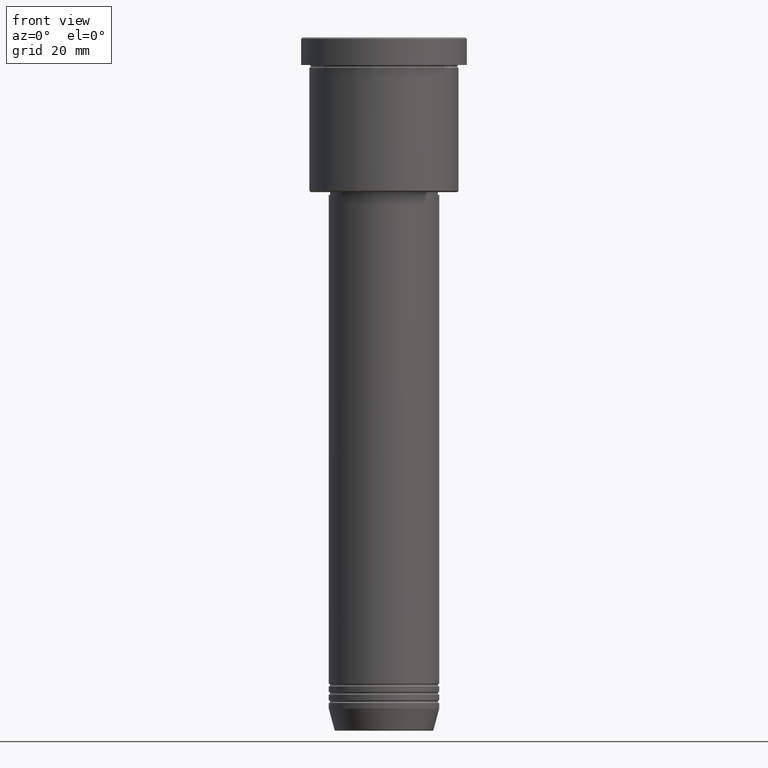
[diagram: clean part render]
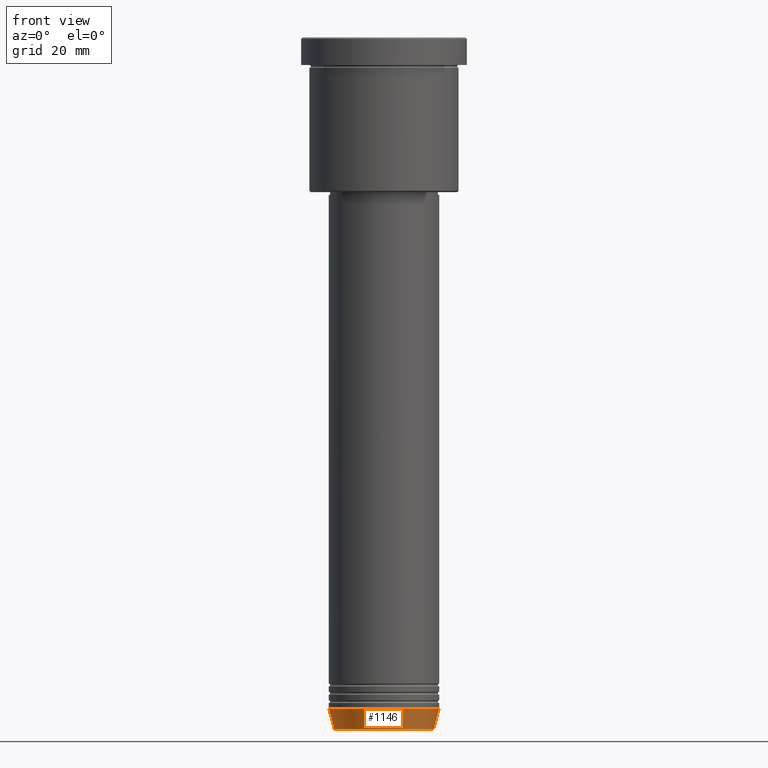
[diagram: same view with one face highlighted and labeled with its STEP entity id]
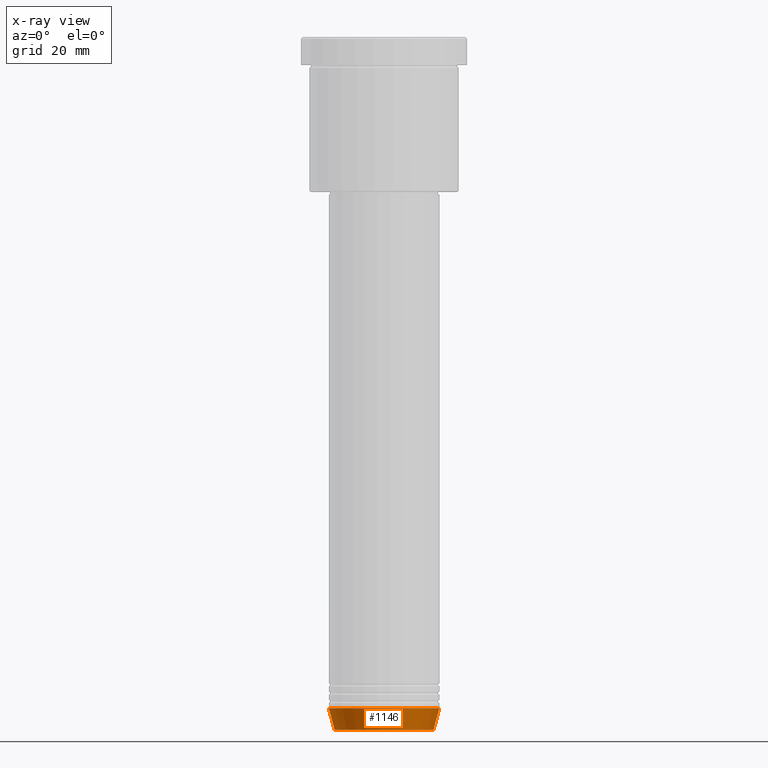
[diagram: x-ray of the same camera — body ghosted, the highlighted face saturated]
A machine part, front view. The second image highlights one B-rep face of the part: STEP entity #1146.
The next image is the same camera in x-ray: the body ghosted, the highlighted face saturated — about 0% of this face is hidden behind the body in this view.
In plain terms, the highlighted conical surface has half-angle 15 deg.
Its self-contained STEP definition (entity closure, byte-faithful):
#77 = CONICAL_SURFACE ( 'NONE', #834, 20.00000000000000000, 0.2617993877991500740 ) ;
#127 = VERTEX_POINT ( 'NONE', #176 ) ;
#142 = LINE ( 'NONE', #311, #402 ) ;
#154 = EDGE_CURVE ( 'NONE', #214, #471, #253, .T. ) ;
#176 = CARTESIAN_POINT ( 'NONE',  ( -17.95570587970607690, 2.324116685748020977E-15, -250.6294095225512422 ) ) ;
#195 = CARTESIAN_POINT ( 'NONE',  ( 0.000000000000000000, 0.000000000000000000, -243.0000000000000284 ) ) ;
#204 = CIRCLE ( 'NONE', #790, 20.00000000000000000 ) ;
#214 = VERTEX_POINT ( 'NONE', #632 ) ;
#253 = LINE ( 'NONE', #994, #838 ) ;
#254 = EDGE_CURVE ( 'NONE', #651, #471, #204, .T. ) ;
#259 = DIRECTION ( 'NONE',  ( 0.2588190451025213501, 0.000000000000000000, 0.9659258262890680902 ) ) ;
#304 = AXIS2_PLACEMENT_3D ( 'NONE', #980, #1001, #455 ) ;
#311 = CARTESIAN_POINT ( 'NONE',  ( -20.00000000000000000, 2.449293598294706513E-15, -243.0000000000000284 ) ) ;
#321 = CIRCLE ( 'NONE', #304, 17.95570587970607690 ) ;
#341 = EDGE_CURVE ( 'NONE', #127, #214, #321, .T. ) ;
#350 = CARTESIAN_POINT ( 'NONE',  ( -20.00000000000000000, 2.449293598294706513E-15, -243.0000000000000284 ) ) ;
#370 = ORIENTED_EDGE ( 'NONE', *, *, #254, .F. ) ;
#402 = VECTOR ( 'NONE', #974, 1000.000000000000000 ) ;
#455 = DIRECTION ( 'NONE',  ( 1.000000000000000000, 0.000000000000000000, 0.000000000000000000 ) ) ;
#465 = CARTESIAN_POINT ( 'NONE',  ( 0.000000000000000000, 0.000000000000000000, -243.0000000000000284 ) ) ;
#471 = VERTEX_POINT ( 'NONE', #1157 ) ;
#592 = DIRECTION ( 'NONE',  ( 1.000000000000000000, 0.000000000000000000, 0.000000000000000000 ) ) ;
#632 = CARTESIAN_POINT ( 'NONE',  ( 17.95570587970607690, 0.000000000000000000, -250.6294095225512422 ) ) ;
#638 = ORIENTED_EDGE ( 'NONE', *, *, #154, .T. ) ;
#648 = DIRECTION ( 'NONE',  ( 1.000000000000000000, 0.000000000000000000, 0.000000000000000000 ) ) ;
#651 = VERTEX_POINT ( 'NONE', #350 ) ;
#659 = DIRECTION ( 'NONE',  ( -0.000000000000000000, -0.000000000000000000, 1.000000000000000000 ) ) ;
#675 = EDGE_CURVE ( 'NONE', #127, #651, #142, .T. ) ;
#744 = DIRECTION ( 'NONE',  ( -0.000000000000000000, -0.000000000000000000, 1.000000000000000000 ) ) ;
#790 = AXIS2_PLACEMENT_3D ( 'NONE', #465, #744, #648 ) ;
#814 = ORIENTED_EDGE ( 'NONE', *, *, #341, .T. ) ;
#826 = EDGE_LOOP ( 'NONE', ( #1168, #814, #638, #370 ) ) ;
#834 = AXIS2_PLACEMENT_3D ( 'NONE', #195, #659, #592 ) ;
#838 = VECTOR ( 'NONE', #259, 1000.000000000000000 ) ;
#930 = FACE_OUTER_BOUND ( 'NONE', #826, .T. ) ;
#974 = DIRECTION ( 'NONE',  ( -0.2588190451025213501, 3.169619151431772337E-17, 0.9659258262890680902 ) ) ;
#980 = CARTESIAN_POINT ( 'NONE',  ( 0.000000000000000000, 0.000000000000000000, -250.6294095225512422 ) ) ;
#994 = CARTESIAN_POINT ( 'NONE',  ( 20.00000000000000000, 0.000000000000000000, -243.0000000000000284 ) ) ;
#1001 = DIRECTION ( 'NONE',  ( -0.000000000000000000, -0.000000000000000000, 1.000000000000000000 ) ) ;
#1146 = ADVANCED_FACE ( 'NONE', ( #930 ), #77, .T. ) ;
#1157 = CARTESIAN_POINT ( 'NONE',  ( 20.00000000000000000, 0.000000000000000000, -243.0000000000000284 ) ) ;
#1168 = ORIENTED_EDGE ( 'NONE', *, *, #675, .F. ) ;